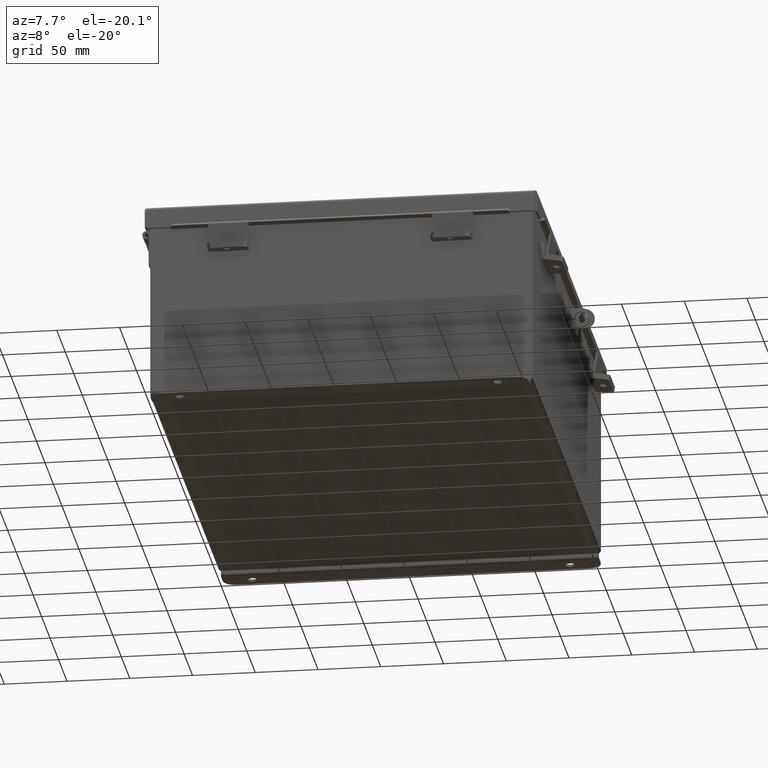
[diagram: clean part render]
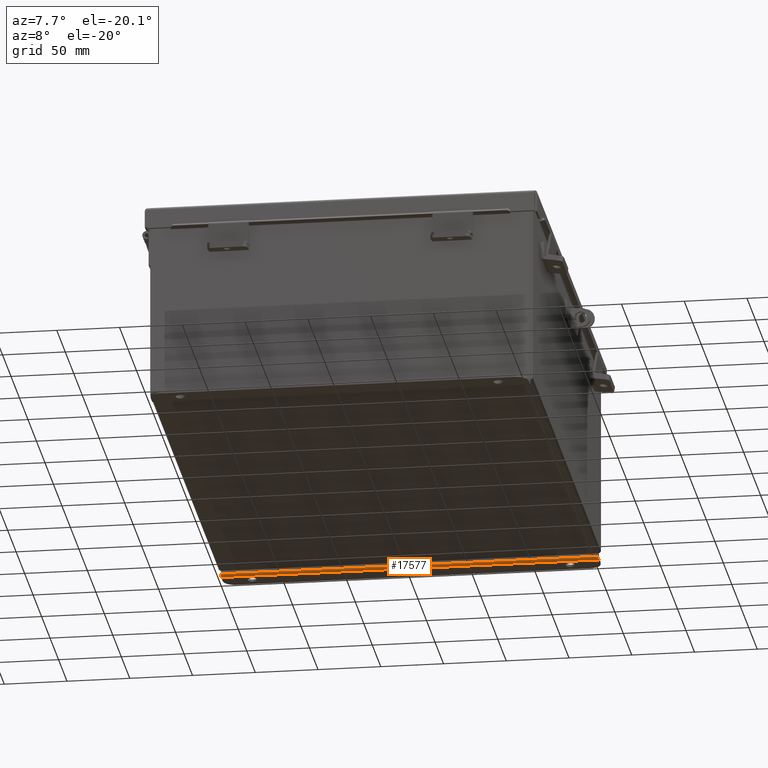
[diagram: same view with one face highlighted and labeled with its STEP entity id]
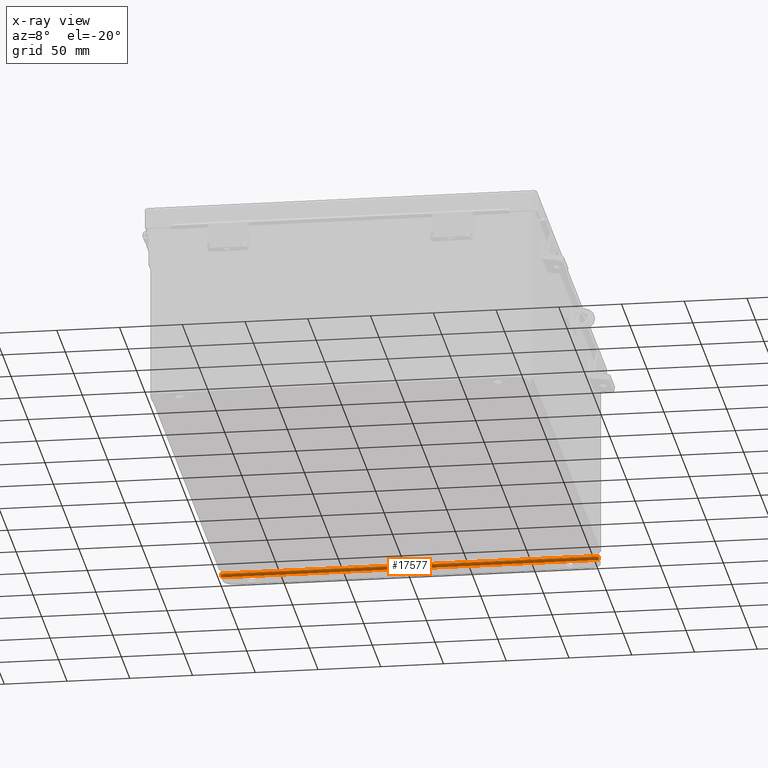
[diagram: x-ray of the same camera — body ghosted, the highlighted face saturated]
A machine part, auxiliary view. The second image highlights one B-rep face of the part: STEP entity #17577.
The next image is the same camera in x-ray: the body ghosted, the highlighted face saturated — about 0% of this face is hidden behind the body in this view.
In plain terms, the highlighted cylindrical surface (edge-blend (fillet) strip) has radius 2.2276 mm, axis along (-1, 0, 0).
Its self-contained STEP definition (entity closure, byte-faithful):
#24 = LINE ( 'NONE', #1038, #12367 ) ;
#1038 = CARTESIAN_POINT ( 'NONE',  ( -5.925300000000001800, -0.07470000000000015500, -3.099299999999999900 ) ) ;
#1381 = EDGE_CURVE ( 'NONE', #17163, #11149, #16518, .T. ) ;
#2139 = ORIENTED_EDGE ( 'NONE', *, *, #5130, .F. ) ;
#2848 = DIRECTION ( 'NONE',  ( 1.000000000000000000, -0.0000000000000000000, -0.0000000000000000000 ) ) ;
#3488 = ORIENTED_EDGE ( 'NONE', *, *, #1381, .T. ) ;
#4529 = CARTESIAN_POINT ( 'NONE',  ( 5.925299999999999100, -0.07470000000000015500, -3.099299999999999900 ) ) ;
#5130 = EDGE_CURVE ( 'NONE', #17163, #5453, #11723, .T. ) ;
#5453 = VERTEX_POINT ( 'NONE', #19085 ) ;
#5675 = CYLINDRICAL_SURFACE ( 'NONE', #15355, 0.08770000000000026400 ) ;
#7020 = DIRECTION ( 'NONE',  ( -1.000000000000000000, 0.0000000000000000000, 0.0000000000000000000 ) ) ;
#7426 = EDGE_CURVE ( 'NONE', #14085, #11149, #14763, .T. ) ;
#7630 = CARTESIAN_POINT ( 'NONE',  ( 5.925299999999999100, 0.01300000000000010700, -3.187000000000000300 ) ) ;
#9071 = CARTESIAN_POINT ( 'NONE',  ( -5.925300000000000000, 0.01300000000000010700, -3.099299999999999900 ) ) ;
#10130 = DIRECTION ( 'NONE',  ( 0.0000000000000000000, -3.699053013085864000E-015, -1.000000000000000000 ) ) ;
#10249 = AXIS2_PLACEMENT_3D ( 'NONE', #12142, #2848, #13719 ) ;
#10630 = DIRECTION ( 'NONE',  ( 0.0000000000000000000, 0.0000000000000000000, 1.000000000000000000 ) ) ;
#11149 = VERTEX_POINT ( 'NONE', #7630 ) ;
#11430 = DIRECTION ( 'NONE',  ( 1.000000000000000000, -0.0000000000000000000, -0.0000000000000000000 ) ) ;
#11723 = CIRCLE ( 'NONE', #18047, 0.08770000000000026400 ) ;
#11847 = DIRECTION ( 'NONE',  ( 1.000000000000000000, -0.0000000000000000000, -0.0000000000000000000 ) ) ;
#12142 = CARTESIAN_POINT ( 'NONE',  ( 5.925299999999999100, 0.01300000000000010700, -3.099299999999999900 ) ) ;
#12340 = VECTOR ( 'NONE', #11430, 39.37007874015748100 ) ;
#12367 = VECTOR ( 'NONE', #11847, 39.37007874015748100 ) ;
#13349 = ORIENTED_EDGE ( 'NONE', *, *, #14536, .F. ) ;
#13719 = DIRECTION ( 'NONE',  ( 0.0000000000000000000, 0.0000000000000000000, 1.000000000000000000 ) ) ;
#13757 = ORIENTED_EDGE ( 'NONE', *, *, #7426, .F. ) ;
#14085 = VERTEX_POINT ( 'NONE', #4529 ) ;
#14536 = EDGE_CURVE ( 'NONE', #5453, #14085, #24, .T. ) ;
#14763 = CIRCLE ( 'NONE', #10249, 0.08770000000000026400 ) ;
#14973 = EDGE_LOOP ( 'NONE', ( #13349, #2139, #3488, #13757 ) ) ;
#15355 = AXIS2_PLACEMENT_3D ( 'NONE', #19498, #7020, #10130 ) ;
#16518 = LINE ( 'NONE', #19939, #12340 ) ;
#17163 = VERTEX_POINT ( 'NONE', #18399 ) ;
#17577 = ADVANCED_FACE ( 'NONE', ( #18590 ), #5675, .T. ) ;
#18047 = AXIS2_PLACEMENT_3D ( 'NONE', #9071, #20010, #10630 ) ;
#18399 = CARTESIAN_POINT ( 'NONE',  ( -5.925300000000000000, 0.01300000000000010700, -3.187000000000000300 ) ) ;
#18590 = FACE_OUTER_BOUND ( 'NONE', #14973, .T. ) ;
#19085 = CARTESIAN_POINT ( 'NONE',  ( -5.925300000000000000, -0.07470000000000015500, -3.099299999999999900 ) ) ;
#19498 = CARTESIAN_POINT ( 'NONE',  ( -5.925300000000001800, 0.01300000000000010700, -3.099299999999999900 ) ) ;
#19939 = CARTESIAN_POINT ( 'NONE',  ( 5.925299999999999100, 0.01300000000000010700, -3.187000000000000300 ) ) ;
#20010 = DIRECTION ( 'NONE',  ( -1.000000000000000000, 0.0000000000000000000, 0.0000000000000000000 ) ) ;